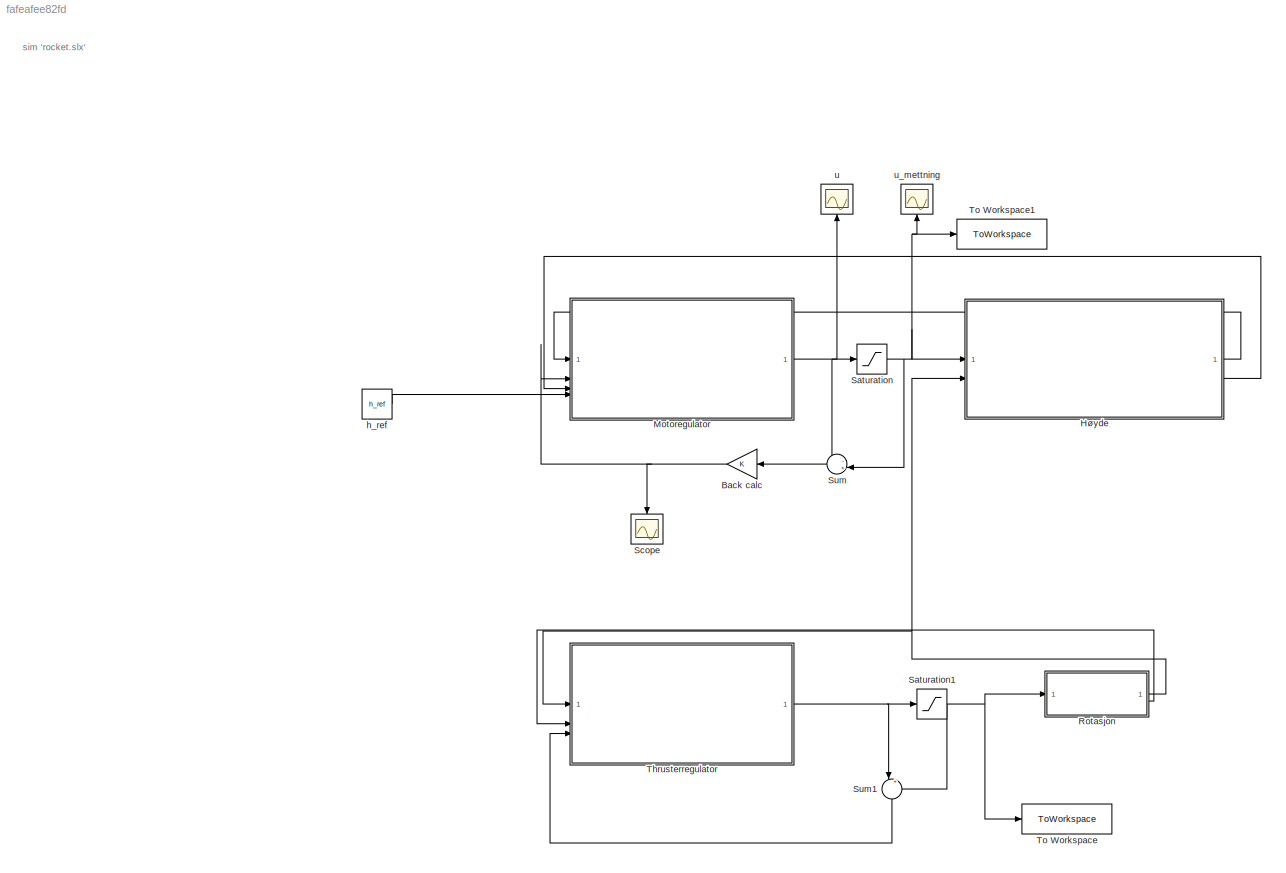
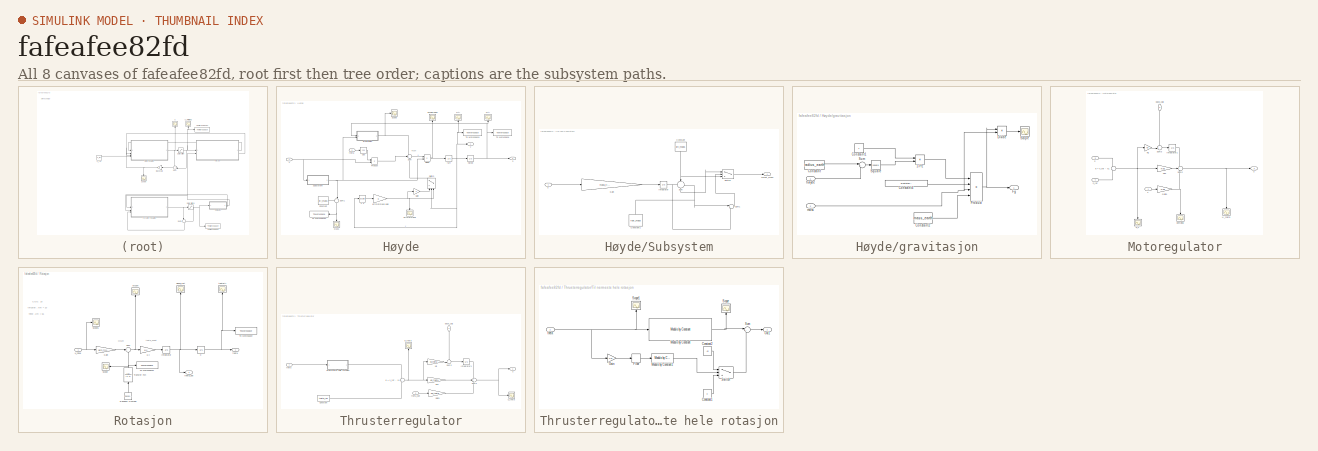
[diagram: thumbnail index - all 8 canvases of the model, root first then tree order]
MODEL slx_fafeafee82fd
KIND model
CONFIG AbsTol = auto
CONFIG EnableMultiTasking = off
CONFIG FixedStep = 1/24
CONFIG MaxStep = 1.2
CONFIG MinStep = auto
CONFIG RelTol = 1e-3
CONFIG SampleTimeConstraint = Unconstrained
CONFIG SolverName = FixedStepAuto
CONFIG StartTime = 0.0
CONFIG StopTime = 80
BLOCK [Gain] Back calc
  NameLocation = top
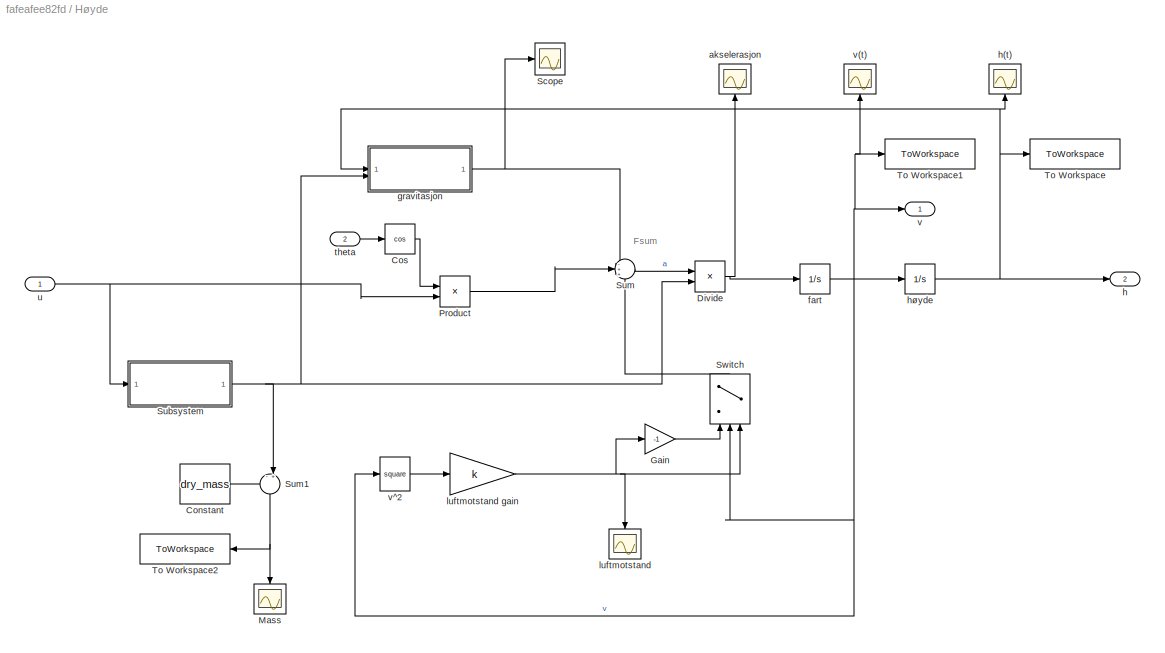
BLOCK [SubSystem] Høyde
BLOCK [Constant] Høyde/Constant
  Value = dry_mass
BLOCK [Trigonometry] Høyde/Cos
  Operator = cos
BLOCK [Product] Høyde/Divide
  Inputs = */
BLOCK [Gain] Høyde/Gain
  Gain = -1
BLOCK [Scope] Høyde/Mass
  Floating = off
  NameLocation = left
  NumInputPorts = 1
  ScopeSpecificationString = Simulink.scopes.TimeScopeBlockCfg('CurrentConfiguration', extmgr.ConfigurationSet(extmgr.Configuration('Core','General UI',true),extmgr.Configuration('Core','Source UI',true),extmgr.Configuration('Sources','WiredSimulink',true,'DataLoggingVariableName','ScopeData2'),extmgr.Configuration('Visuals','Time Domain',true,'SerializedDisplays',{struct('MinYLimReal','-150.44831','MaxYLimReal','3600.6671','...<+1456ch>
BLOCK [Product] Høyde/Product
BLOCK [Scope] Høyde/Scope
  Floating = off
  NumInputPorts = 1
  ScopeSpecificationString = Simulink.scopes.TimeScopeBlockCfg('CurrentConfiguration', extmgr.ConfigurationSet(extmgr.Configuration('Core','General UI',true),extmgr.Configuration('Core','Source UI',true),extmgr.Configuration('Sources','WiredSimulink',true,'DataLoggingVariableName','ScopeData1'),extmgr.Configuration('Visuals','Time Domain',true,'SerializedDisplays',{struct('MinYLimReal','244033.05655','MaxYLimReal','280758.486...<+1461ch>
BLOCK [SubSystem] Høyde/Subsystem
BLOCK [Constant] Høyde/Subsystem/Constant
  NameLocation = left
  Value = dry_mass
BLOCK [Constant] Høyde/Subsystem/Constant1
  NameLocation = right
  Value = fuel_mass
BLOCK [Gain] Høyde/Subsystem/Gain
  Gain = mass_flow_engine/F_max
BLOCK [Integrator] Høyde/Subsystem/Integrator
BLOCK [Sum] Høyde/Subsystem/Sum
  Inputs = -|+|+
  NameLocation = left
BLOCK [Sum] Høyde/Subsystem/Sum1
  Inputs = |+-
BLOCK [Switch] Høyde/Subsystem/Switch
  Criteria = u2 > Threshold
  InputSameDT = off
  SaturateOnIntegerOverflow = off
BLOCK [Outport] Høyde/Subsystem/curent_mass
BLOCK [Inport] Høyde/Subsystem/u
BLOCK [Sum] Høyde/Sum
  Inputs = -++
BLOCK [Sum] Høyde/Sum1
  Inputs = -+|
  NameLocation = left
BLOCK [Switch] Høyde/Switch
  Criteria = u2 > Threshold
  InputSameDT = off
  NameLocation = right
  SaturateOnIntegerOverflow = off
BLOCK [ToWorkspace] Høyde/To Workspace
  FixptAsFi = on
  MaxDataPoints = inf
  SampleTime = -1
  SaveFormat = Timeseries
  VariableName = hoyde
BLOCK [ToWorkspace] Høyde/To Workspace1
  FixptAsFi = on
  MaxDataPoints = inf
  SampleTime = -1
  SaveFormat = Timeseries
  VariableName = fart
BLOCK [ToWorkspace] Høyde/To Workspace2
  FixptAsFi = on
  MaxDataPoints = inf
  NameLocation = top
  SampleTime = -1
  SaveFormat = Timeseries
  VariableName = fuel_mass
BLOCK [Scope] Høyde/akselerasjon
  Floating = off
  NameLocation = right
  NumInputPorts = 1
  ScopeSpecificationString = Simulink.scopes.TimeScopeBlockCfg('CurrentConfiguration', extmgr.ConfigurationSet(extmgr.Configuration('Core','General UI',true),extmgr.Configuration('Core','Source UI',true),extmgr.Configuration('Sources','WiredSimulink',true,'DataLoggingVariableName','ScopeData3'),extmgr.Configuration('Visuals','Time Domain',true,'SerializedDisplays',{struct('MinYLimReal','-4.20994','MaxYLimReal','37.20143','YLa...<+1406ch>
BLOCK [Integrator] Høyde/fart
  InitialCondition = v_0
BLOCK [SubSystem] Høyde/gravitasjon
BLOCK [Product] Høyde/gravitasjon/1//r^2
  Inputs = */
BLOCK [Constant] Høyde/gravitasjon/Constant
  Value = radius_earth
BLOCK [Constant] Høyde/gravitasjon/Constant1
BLOCK [Constant] Høyde/gravitasjon/Constant2
  Value = mass_earth
BLOCK [Constant] Høyde/gravitasjon/Constant4
  Value = gravitational_constant
BLOCK [Product] Høyde/gravitasjon/Divide
  Inputs = */
BLOCK [Outport] Høyde/gravitasjon/Fg
BLOCK [Product] Høyde/gravitasjon/Product
  Inputs = 4
BLOCK [Scope] Høyde/gravitasjon/Scope
  Floating = off
  NumInputPorts = 1
  ScopeSpecificationString = Simulink.scopes.TimeScopeBlockCfg('CurrentConfiguration', extmgr.ConfigurationSet(extmgr.Configuration('Core','General UI',true),extmgr.Configuration('Core','Source UI',true),extmgr.Configuration('Sources','WiredSimulink',true,'DataLoggingVariableName','ScopeData1'),extmgr.Configuration('Visuals','Time Domain',true,'SerializedDisplays',{struct('MinYLimReal','9.78537','MaxYLimReal','9.82382','YLabe...<+1536ch>
BLOCK [Math] Høyde/gravitasjon/Square
  Operator = square
BLOCK [Sum] Høyde/gravitasjon/Sum
  Inputs = |++
BLOCK [Inport] Høyde/gravitasjon/høyde
BLOCK [Inport] Høyde/gravitasjon/mass
  Port = 2
BLOCK [Outport] Høyde/h
  Port = 2
BLOCK [Scope] Høyde/h(t)
  Floating = off
  NameLocation = right
  NumInputPorts = 1
  ScopeSpecificationString = Simulink.scopes.TimeScopeBlockCfg('CurrentConfiguration', extmgr.ConfigurationSet(extmgr.Configuration('Core','General UI',true),extmgr.Configuration('Core','Source UI',true),extmgr.Configuration('Sources','WiredSimulink',true,'DataLoggingVariableName','ScopeData1'),extmgr.Configuration('Visuals','Time Domain',true,'SerializedDisplays',{struct('MinYLimReal','-326.2451','MaxYLimReal','1014.50324','...<+1452ch>
BLOCK [Integrator] Høyde/høyde
  InitialCondition = h0
BLOCK [Scope] Høyde/luftmotstand
  Floating = off
  NameLocation = left
  NumInputPorts = 1
  ScopeSpecificationString = Simulink.scopes.TimeScopeBlockCfg('CurrentConfiguration', extmgr.ConfigurationSet(extmgr.Configuration('Core','General UI',true),extmgr.Configuration('Core','Source UI',true),extmgr.Configuration('Sources','WiredSimulink',true,'DataLoggingVariableName','ScopeData3'),extmgr.Configuration('Visuals','Time Domain',true,'SerializedDisplays',{struct('MinYLimReal','-34601.50603','MaxYLimReal','311413.554...<+1450ch>
BLOCK [Gain] Høyde/luftmotstand gain
  Gain = k
BLOCK [Inport] Høyde/theta
  Port = 2
BLOCK [Inport] Høyde/u
BLOCK [Outport] Høyde/v
BLOCK [Scope] Høyde/v(t)
  Floating = off
  NameLocation = right
  NumInputPorts = 1
  ScopeSpecificationString = Simulink.scopes.TimeScopeBlockCfg('CurrentConfiguration', extmgr.ConfigurationSet(extmgr.Configuration('Core','General UI',true),extmgr.Configuration('Core','Source UI',true),extmgr.Configuration('Sources','WiredSimulink',true,'DataLoggingVariableName','ScopeData1'),extmgr.Configuration('Visuals','Time Domain',true,'SerializedDisplays',{struct('MinYLimReal','-253.07606','MaxYLimReal','28.11807','Y...<+1401ch>
BLOCK [Math] Høyde/v^2
  Operator = square
BLOCK [SubSystem] Motoregulator
BLOCK [Gain] Motoregulator/Gain1
  Gain = Kd1
BLOCK [Integrator] Motoregulator/Integrator1
BLOCK [Gain] Motoregulator/Ki1
  Gain = Ki1
BLOCK [Gain] Motoregulator/Kp1
  Gain = Kp1
BLOCK [Sum] Motoregulator/Sum2
  Inputs = ++-
BLOCK [Sum] Motoregulator/Sum3
  Inputs = ++|
BLOCK [Scope] Motoregulator/U_theta
  Floating = off
  NameLocation = left
  NumInputPorts = 1
  ScopeSpecificationString = Simulink.scopes.TimeScopeBlockCfg('CurrentConfiguration', extmgr.ConfigurationSet(extmgr.Configuration('Core','General UI',true),extmgr.Configuration('Core','Source UI',true),extmgr.Configuration('Sources','WiredSimulink',true,'DataLoggingVariableName','ScopeData4'),extmgr.Configuration('Visuals','Time Domain',true,'SerializedDisplays',{struct('MinYLimReal','-1095696217.85816','MaxYLimReal','12501...<+1473ch>
BLOCK [Inport] Motoregulator/back_calc
  NameLocation = left
  Port = 2
BLOCK [Scope] Motoregulator/demping
  Floating = off
  NameLocation = left
  NumInputPorts = 1
  ScopeSpecificationString = Simulink.scopes.TimeScopeBlockCfg('CurrentConfiguration', extmgr.ConfigurationSet(extmgr.Configuration('Core','General UI',true),extmgr.Configuration('Core','Source UI',true),extmgr.Configuration('Sources','WiredSimulink',true,'DataLoggingVariableName','ScopeData1'),extmgr.Configuration('Visuals','Time Domain',true,'SerializedDisplays',{struct('MinYLimReal','-29774238.42508','MaxYLimReal','3305219...<+1456ch>
BLOCK [Sum] Motoregulator/e = v_ref - v1
  Inputs = -|+
  NameLocation = left
BLOCK [Scope] Motoregulator/e_h
  Floating = off
  NameLocation = left
  NumInputPorts = 1
  ScopeSpecificationString = Simulink.scopes.TimeScopeBlockCfg('CurrentConfiguration', extmgr.ConfigurationSet(extmgr.Configuration('Core','General UI',true),extmgr.Configuration('Core','Source UI',true),extmgr.Configuration('Sources','WiredSimulink',true,'DataLoggingVariableName','ScopeData5'),extmgr.Configuration('Visuals','Time Domain',true,'SerializedDisplays',{struct('MinYLimReal','-11249.99933','MaxYLimReal','1249.99396...<+1443ch>
BLOCK [Inport] Motoregulator/h
  Port = 3
BLOCK [Inport] Motoregulator/h_ref
  Port = 4
BLOCK [Outport] Motoregulator/u
BLOCK [Inport] Motoregulator/v
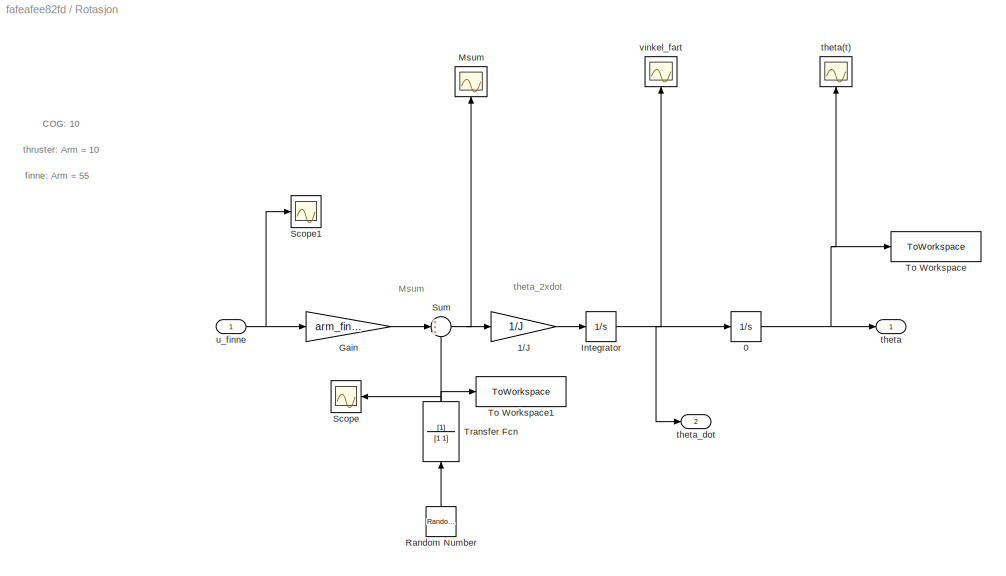
BLOCK [SubSystem] Rotasjon
BLOCK [Integrator] Rotasjon/0
  InitialCondition = theta_0
BLOCK [Gain] Rotasjon/1//J
  Gain = 1/J
BLOCK [Gain] Rotasjon/Gain
  Gain = arm_finne
BLOCK [Integrator] Rotasjon/Integrator
  InitialCondition = theta_dot_0
BLOCK [Scope] Rotasjon/Msum
  Floating = off
  NameLocation = right
  NumInputPorts = 1
  ScopeSpecificationString = Simulink.scopes.TimeScopeBlockCfg('CurrentConfiguration', extmgr.ConfigurationSet(extmgr.Configuration('Core','General UI',true),extmgr.Configuration('Core','Source UI',true),extmgr.Configuration('Sources','WiredSimulink',true,'DataLoggingVariableName','ScopeData4'),extmgr.Configuration('Visuals','Time Domain',true,'SerializedDisplays',{struct('MinYLimReal','-687500.00000','MaxYLimReal','687500.00...<+1455ch>
BLOCK [RandomNumber] Rotasjon/Random Number
  Mean = 1000/2
  NameLocation = right
  SampleTime = 1/24
  Seed = 100000
  Variance = 10000000000
BLOCK [Scope] Rotasjon/Scope
  Floating = off
  NameLocation = top
  NumInputPorts = 1
  ScopeSpecificationString = Simulink.scopes.TimeScopeBlockCfg('CurrentConfiguration', extmgr.ConfigurationSet(extmgr.Configuration('Core','General UI',true),extmgr.Configuration('Core','Source UI',true),extmgr.Configuration('Sources','WiredSimulink',true,'DataLoggingVariableName','ScopeData2'),extmgr.Configuration('Visuals','Time Domain',true),extmgr.Configuration('Tools','Plot Navigation',true),extmgr.Configuration('Tools',...<+40ch>
BLOCK [Scope] Rotasjon/Scope1
  Floating = off
  NumInputPorts = 1
  ScopeSpecificationString = Simulink.scopes.TimeScopeBlockCfg('CurrentConfiguration', extmgr.ConfigurationSet(extmgr.Configuration('Core','General UI',true),extmgr.Configuration('Core','Source UI',true),extmgr.Configuration('Sources','WiredSimulink',true,'DataLoggingVariableName','ScopeData2'),extmgr.Configuration('Visuals','Time Domain',true,'SerializedDisplays',{struct('MinYLimReal','-12246.62542','MaxYLimReal','10219.6287...<+1437ch>
BLOCK [Sum] Rotasjon/Sum
  Inputs = +++
BLOCK [ToWorkspace] Rotasjon/To Workspace
  FixptAsFi = on
  MaxDataPoints = inf
  SampleTime = -1
  SaveFormat = Timeseries
  VariableName = theta
BLOCK [ToWorkspace] Rotasjon/To Workspace1
  FixptAsFi = on
  MaxDataPoints = inf
  SampleTime = -1
  SaveFormat = Timeseries
  VariableName = w
BLOCK [TransferFcn] Rotasjon/Transfer Fcn
  Denominator = [1 1]
  NameLocation = right
BLOCK [Outport] Rotasjon/theta
BLOCK [Scope] Rotasjon/theta(t)
  Floating = off
  NameLocation = right
  NumInputPorts = 1
  ScopeSpecificationString = Simulink.scopes.TimeScopeBlockCfg('CurrentConfiguration', extmgr.ConfigurationSet(extmgr.Configuration('Core','General UI',true),extmgr.Configuration('Core','Source UI',true),extmgr.Configuration('Sources','WiredSimulink',true,'DataLoggingVariableName','ScopeData5'),extmgr.Configuration('Visuals','Time Domain',true,'SerializedDisplays',{struct('MinYLimReal','-0.01419','MaxYLimReal','0.00773','YLab...<+1458ch>
BLOCK [Outport] Rotasjon/theta_dot
  Port = 2
BLOCK [Inport] Rotasjon/u_finne
BLOCK [Scope] Rotasjon/vinkel_fart
  Floating = off
  NameLocation = right
  NumInputPorts = 1
  ScopeSpecificationString = Simulink.scopes.TimeScopeBlockCfg('CurrentConfiguration', extmgr.ConfigurationSet(extmgr.Configuration('Core','General UI',true),extmgr.Configuration('Core','Source UI',true),extmgr.Configuration('Sources','WiredSimulink',true,'DataLoggingVariableName','ScopeData8'),extmgr.Configuration('Visuals','Time Domain',true,'SerializedDisplays',{struct('MinYLimReal','-0.55603','MaxYLimReal','0.61734','YLab...<+1424ch>
BLOCK [Saturate] Saturation
  LowerLimit = 0
  UpperLimit = F_max
BLOCK [Saturate] Saturation1
  LowerLimit = -10000
  UpperLimit = 10000
BLOCK [Scope] Scope
  Floating = off
  NameLocation = left
  NumInputPorts = 1
  ScopeSpecificationString = Simulink.scopes.TimeScopeBlockCfg('CurrentConfiguration', extmgr.ConfigurationSet(extmgr.Configuration('Core','General UI',true),extmgr.Configuration('Core','Source UI',true),extmgr.Configuration('Sources','WiredSimulink',true,'DataLoggingVariableName','ScopeData2'),extmgr.Configuration('Visuals','Time Domain',true,'SerializedDisplays',{struct('MinYLimReal','-124065335.72345','MaxYLimReal','109559...<+1471ch>
BLOCK [Sum] Sum
  Inputs = -+|
  NameLocation = top
BLOCK [Sum] Sum1
  Inputs = |+-
  NameLocation = left
BLOCK [SubSystem] Thrusterregulator
BLOCK [Constant] Thrusterregulator/Constant
  Value = theta_ref
BLOCK [Gain] Thrusterregulator/Gain1
  Gain = Kd_theta
BLOCK [Integrator] Thrusterregulator/Integrator1
BLOCK [Gain] Thrusterregulator/Ki1
  Gain = Ki_theta
BLOCK [Gain] Thrusterregulator/Kp1
  Gain = Kp_theta
BLOCK [Sum] Thrusterregulator/Sum2
  Inputs = ++-
BLOCK [Sum] Thrusterregulator/Sum3
  Inputs = -+|
BLOCK [SubSystem] Thrusterregulator/Til nermeste hele rotasjon
BLOCK [Constant] Thrusterregulator/Til nermeste hele rotasjon/Constant1
  Value = 0
BLOCK [Constant] Thrusterregulator/Til nermeste hele rotasjon/Constant2
  Value = -pi
BLOCK [Rounding] Thrusterregulator/Til nermeste hele rotasjon/Floor
BLOCK [Gain] Thrusterregulator/Til nermeste hele rotasjon/Gain
  Gain = 1/pi
BLOCK [Reference] Thrusterregulator/Til nermeste hele rotasjon/Modulo by Constant  REF=embmathops/Modulo by Constant
  LibrarySourceBlock = embeddedMathLib/Modulo by Constant
  SourceBlock = embmathops/Modulo by Constant
  SourceType = fixed.system.ModByConstant
BLOCK [Reference] Thrusterregulator/Til nermeste hele rotasjon/Modulo by Constant1  REF=embmathops/Modulo by Constant
  LibrarySourceBlock = embeddedMathLib/Modulo by Constant
  SourceBlock = embmathops/Modulo by Constant
  SourceType = fixed.system.ModByConstant
BLOCK [Outport] Thrusterregulator/Til nermeste hele rotasjon/Out1
BLOCK [Scope] Thrusterregulator/Til nermeste hele rotasjon/Scope
  Floating = off
  NameLocation = right
  NumInputPorts = 1
  ScopeSpecificationString = Simulink.scopes.TimeScopeBlockCfg('CurrentConfiguration', extmgr.ConfigurationSet(extmgr.Configuration('Core','General UI',true),extmgr.Configuration('Core','Source UI',true),extmgr.Configuration('Sources','WiredSimulink',true,'DataLoggingVariableName','ScopeData4'),extmgr.Configuration('Visuals','Time Domain',true),extmgr.Configuration('Tools','Plot Navigation',true),extmgr.Configuration('Tools',...<+40ch>
BLOCK [Scope] Thrusterregulator/Til nermeste hele rotasjon/Scope1
  Floating = off
  NameLocation = right
  NumInputPorts = 1
  ScopeSpecificationString = Simulink.scopes.TimeScopeBlockCfg('CurrentConfiguration', extmgr.ConfigurationSet(extmgr.Configuration('Core','General UI',true),extmgr.Configuration('Core','Source UI',true),extmgr.Configuration('Sources','WiredSimulink',true,'DataLoggingVariableName','ScopeData3'),extmgr.Configuration('Visuals','Time Domain',true,'SerializedDisplays',{struct('MinYLimReal','18.70575','MaxYLimReal','20.14381','YLa...<+1425ch>
BLOCK [Sum] Thrusterregulator/Til nermeste hele rotasjon/Sum
  Inputs = |++
BLOCK [Switch] Thrusterregulator/Til nermeste hele rotasjon/Switch
  Criteria = u2 > Threshold
  InputSameDT = off
  SaturateOnIntegerOverflow = off
BLOCK [Inport] Thrusterregulator/Til nermeste hele rotasjon/theta
BLOCK [Inport] Thrusterregulator/back_calc
  NameLocation = left
  Port = 3
BLOCK [Sum] Thrusterregulator/e = v_ref - v1
  Inputs = -|+
  NameLocation = left
BLOCK [Scope] Thrusterregulator/e_theta
  Floating = off
  NameLocation = right
  NumInputPorts = 1
  ScopeSpecificationString = Simulink.scopes.TimeScopeBlockCfg('CurrentConfiguration', extmgr.ConfigurationSet(extmgr.Configuration('Core','General UI',true),extmgr.Configuration('Core','Source UI',true),extmgr.Configuration('Sources','WiredSimulink',true,'DataLoggingVariableName','ScopeData5'),extmgr.Configuration('Visuals','Time Domain',true,'SerializedDisplays',{struct('MinYLimReal','-1.66049','MaxYLimReal','6.85117','YLab...<+1415ch>
BLOCK [Inport] Thrusterregulator/theta
BLOCK [Inport] Thrusterregulator/theta_dot
  Port = 2
BLOCK [Outport] Thrusterregulator/u
BLOCK [Scope] Thrusterregulator/u_theta
  Floating = off
  NumInputPorts = 1
  ScopeSpecificationString = Simulink.scopes.TimeScopeBlockCfg('CurrentConfiguration', extmgr.ConfigurationSet(extmgr.Configuration('Core','General UI',true),extmgr.Configuration('Core','Source UI',true),extmgr.Configuration('Sources','WiredSimulink',true,'DataLoggingVariableName','ScopeData4'),extmgr.Configuration('Visuals','Time Domain',true,'SerializedDisplays',{struct('MinYLimReal','-12933.37905','MaxYLimReal','4936.64613...<+1439ch>
BLOCK [ToWorkspace] To Workspace
  FixptAsFi = on
  MaxDataPoints = inf
  SampleTime = -1
  SaveFormat = Timeseries
  VariableName = u_theta
BLOCK [ToWorkspace] To Workspace1
  FixptAsFi = on
  MaxDataPoints = inf
  SampleTime = -1
  SaveFormat = Timeseries
  VariableName = u_hoyde
BLOCK [Constant] h_ref
  Value = h_ref
BLOCK [Scope] u
  Floating = off
  NameLocation = right
  NumInputPorts = 1
  ScopeSpecificationString = Simulink.scopes.TimeScopeBlockCfg('CurrentConfiguration', extmgr.ConfigurationSet(extmgr.Configuration('Core','General UI',true),extmgr.Configuration('Core','Source UI',true),extmgr.Configuration('Sources','WiredSimulink',true,'DataLoggingVariableName','ScopeData1'),extmgr.Configuration('Visuals','Time Domain',true,'SerializedDisplays',{struct('MinYLimReal','-60041588908935980505715252173173416192...<+1950ch>
BLOCK [Scope] u_mettning
  Floating = off
  NameLocation = right
  NumInputPorts = 1
  ScopeSpecificationString = Simulink.scopes.TimeScopeBlockCfg('CurrentConfiguration', extmgr.ConfigurationSet(extmgr.Configuration('Core','General UI',true),extmgr.Configuration('Core','Source UI',true),extmgr.Configuration('Sources','WiredSimulink',true,'DataLoggingVariableName','ScopeData2'),extmgr.Configuration('Visuals','Time Domain',true,'SerializedDisplays',{struct('MinYLimReal','-105625.00000','MaxYLimReal','950625.00...<+1437ch>
ANNOTATION (root): sim 'rocket.slx'
ANNOTATION Høyde: Fsum
ANNOTATION Rotasjon: COG: 10
ANNOTATION Rotasjon: Msum
ANNOTATION Rotasjon: finne: Arm = 55
ANNOTATION Rotasjon: theta_2xdot
ANNOTATION Rotasjon: thruster: Arm = 10
NET Back calc:1 -> Motoregulator:2, Scope:1
LINE Høyde/Constant:1 -> Høyde/Sum1:1
LINE Høyde/Cos:1 -> Høyde/Product:1
NET Høyde/Divide:1 -> Høyde/akselerasjon:1, Høyde/fart:1
LINE Høyde/Gain:1 -> Høyde/Switch:1
LINE Høyde/Product:1 -> Høyde/Sum:2
NET Høyde/Subsystem/Constant1:1 -> Høyde/Subsystem/Sum1:1, Høyde/Subsystem/Sum:3
NET Høyde/Subsystem/Constant:1 -> Høyde/Subsystem/Sum:2, Høyde/Subsystem/Switch:3
LINE Høyde/Subsystem/Gain:1 -> Høyde/Subsystem/Integrator:1
NET Høyde/Subsystem/Integrator:1 -> Høyde/Subsystem/Sum1:2, Høyde/Subsystem/Sum:1
LINE Høyde/Subsystem/Sum1:1 -> Høyde/Subsystem/Switch:2
LINE Høyde/Subsystem/Sum:1 -> Høyde/Subsystem/Switch:1
LINE Høyde/Subsystem/Switch:1 -> Høyde/Subsystem/curent_mass:1
LINE Høyde/Subsystem/u:1 -> Høyde/Subsystem/Gain:1
NET Høyde/Subsystem:1 -> Høyde/Divide:2, Høyde/Sum1:2, Høyde/gravitasjon:2
NET Høyde/Sum1:1 -> Høyde/Mass:1, Høyde/To Workspace2:1
LINE Høyde/Sum:1 -> Høyde/Divide:1
LINE Høyde/Switch:1 -> Høyde/Sum:3
NET Høyde/fart:1 -> Høyde/Switch:2, Høyde/To Workspace1:1, Høyde/høyde:1, Høyde/v(t):1, Høyde/v:1, Høyde/v^2:1
LINE Høyde/gravitasjon/1//r^2:1 -> Høyde/gravitasjon/Product:1
LINE Høyde/gravitasjon/Constant1:1 -> Høyde/gravitasjon/1//r^2:1
LINE Høyde/gravitasjon/Constant2:1 -> Høyde/gravitasjon/Product:4
LINE Høyde/gravitasjon/Constant4:1 -> Høyde/gravitasjon/Product:2
LINE Høyde/gravitasjon/Constant:1 -> Høyde/gravitasjon/Sum:1
LINE Høyde/gravitasjon/Divide:1 -> Høyde/gravitasjon/Scope:1
NET Høyde/gravitasjon/Product:1 -> Høyde/gravitasjon/Divide:1, Høyde/gravitasjon/Fg:1
LINE Høyde/gravitasjon/Square:1 -> Høyde/gravitasjon/1//r^2:2
LINE Høyde/gravitasjon/Sum:1 -> Høyde/gravitasjon/Square:1
LINE Høyde/gravitasjon/høyde:1 -> Høyde/gravitasjon/Sum:2
NET Høyde/gravitasjon/mass:1 -> Høyde/gravitasjon/Divide:2, Høyde/gravitasjon/Product:3
NET Høyde/gravitasjon:1 -> Høyde/Scope:1, Høyde/Sum:1
NET Høyde/høyde:1 -> Høyde/To Workspace:1, Høyde/gravitasjon:1, Høyde/h(t):1, Høyde/h:1
NET Høyde/luftmotstand gain:1 -> Høyde/Gain:1, Høyde/Switch:3, Høyde/luftmotstand:1
LINE Høyde/theta:1 -> Høyde/Cos:1
NET Høyde/u:1 -> Høyde/Product:2, Høyde/Subsystem:1
LINE Høyde/v^2:1 -> Høyde/luftmotstand gain:1
LINE Høyde:1 -> Motoregulator:1
LINE Høyde:2 -> Motoregulator:3
NET Motoregulator/Gain1:1 -> Motoregulator/Sum2:3, Motoregulator/demping:1
LINE Motoregulator/Integrator1:1 -> Motoregulator/Sum2:1
LINE Motoregulator/Ki1:1 -> Motoregulator/Sum3:2
LINE Motoregulator/Kp1:1 -> Motoregulator/Sum2:2
NET Motoregulator/Sum2:1 -> Motoregulator/U_theta:1, Motoregulator/u:1
LINE Motoregulator/Sum3:1 -> Motoregulator/Integrator1:1
LINE Motoregulator/back_calc:1 -> Motoregulator/Sum3:1
NET Motoregulator/e = v_ref - v1:1 -> Motoregulator/Ki1:1, Motoregulator/Kp1:1, Motoregulator/e_h:1
LINE Motoregulator/h:1 -> Motoregulator/e = v_ref - v1:1
LINE Motoregulator/h_ref:1 -> Motoregulator/e = v_ref - v1:2
LINE Motoregulator/v:1 -> Motoregulator/Gain1:1
NET Motoregulator:1 -> Saturation:1, Sum:1, u:1
NET Rotasjon/0:1 -> Rotasjon/To Workspace:1, Rotasjon/theta(t):1, Rotasjon/theta:1
LINE Rotasjon/1//J:1 -> Rotasjon/Integrator:1
LINE Rotasjon/Gain:1 -> Rotasjon/Sum:2
NET Rotasjon/Integrator:1 -> Rotasjon/0:1, Rotasjon/theta_dot:1, Rotasjon/vinkel_fart:1
LINE Rotasjon/Random Number:1 -> Rotasjon/Transfer Fcn:1
NET Rotasjon/Sum:1 -> Rotasjon/1//J:1, Rotasjon/Msum:1
NET Rotasjon/Transfer Fcn:1 -> Rotasjon/Scope:1, Rotasjon/Sum:3, Rotasjon/To Workspace1:1
NET Rotasjon/u_finne:1 -> Rotasjon/Gain:1, Rotasjon/Scope1:1
NET Rotasjon:1 -> Høyde:2, Thrusterregulator:1
LINE Rotasjon:2 -> Thrusterregulator:2
NET Saturation1:1 -> Rotasjon:1, Sum1:2, To Workspace:1
NET Saturation:1 -> Høyde:1, Sum:2, To Workspace1:1, u_mettning:1
LINE Sum1:1 -> Thrusterregulator:3
LINE Sum:1 -> Back calc:1
LINE Thrusterregulator/Constant:1 -> Thrusterregulator/e = v_ref - v1:2
LINE Thrusterregulator/Gain1:1 -> Thrusterregulator/Sum2:3
LINE Thrusterregulator/Integrator1:1 -> Thrusterregulator/Sum2:1
LINE Thrusterregulator/Ki1:1 -> Thrusterregulator/Sum3:2
LINE Thrusterregulator/Kp1:1 -> Thrusterregulator/Sum2:2
NET Thrusterregulator/Sum2:1 -> Thrusterregulator/u:1, Thrusterregulator/u_theta:1
LINE Thrusterregulator/Sum3:1 -> Thrusterregulator/Integrator1:1
LINE Thrusterregulator/Til nermeste hele rotasjon/Constant1:1 -> Thrusterregulator/Til nermeste hele rotasjon/Switch:3
LINE Thrusterregulator/Til nermeste hele rotasjon/Constant2:1 -> Thrusterregulator/Til nermeste hele rotasjon/Switch:1
LINE Thrusterregulator/Til nermeste hele rotasjon/Floor:1 -> Thrusterregulator/Til nermeste hele rotasjon/Modulo by Constant1:1
LINE Thrusterregulator/Til nermeste hele rotasjon/Gain:1 -> Thrusterregulator/Til nermeste hele rotasjon/Floor:1
LINE Thrusterregulator/Til nermeste hele rotasjon/Modulo by Constant1:1 -> Thrusterregulator/Til nermeste hele rotasjon/Switch:2
NET Thrusterregulator/Til nermeste hele rotasjon/Modulo by Constant:1 -> Thrusterregulator/Til nermeste hele rotasjon/Scope:1, Thrusterregulator/Til nermeste hele rotasjon/Sum:1
LINE Thrusterregulator/Til nermeste hele rotasjon/Sum:1 -> Thrusterregulator/Til nermeste hele rotasjon/Out1:1
LINE Thrusterregulator/Til nermeste hele rotasjon/Switch:1 -> Thrusterregulator/Til nermeste hele rotasjon/Sum:2
NET Thrusterregulator/Til nermeste hele rotasjon/theta:1 -> Thrusterregulator/Til nermeste hele rotasjon/Gain:1, Thrusterregulator/Til nermeste hele rotasjon/Modulo by Constant:1, Thrusterregulator/Til nermeste hele rotasjon/Scope1:1
LINE Thrusterregulator/Til nermeste hele rotasjon:1 -> Thrusterregulator/e = v_ref - v1:1
LINE Thrusterregulator/back_calc:1 -> Thrusterregulator/Sum3:1
NET Thrusterregulator/e = v_ref - v1:1 -> Thrusterregulator/Ki1:1, Thrusterregulator/Kp1:1, Thrusterregulator/e_theta:1
LINE Thrusterregulator/theta:1 -> Thrusterregulator/Til nermeste hele rotasjon:1
LINE Thrusterregulator/theta_dot:1 -> Thrusterregulator/Gain1:1
NET Thrusterregulator:1 -> Saturation1:1, Sum1:1
LINE h_ref:1 -> Motoregulator:4
note: NET lines group one-source signal fan-out (src -> all destinations, sorted); 1:1 wires keep LINE
